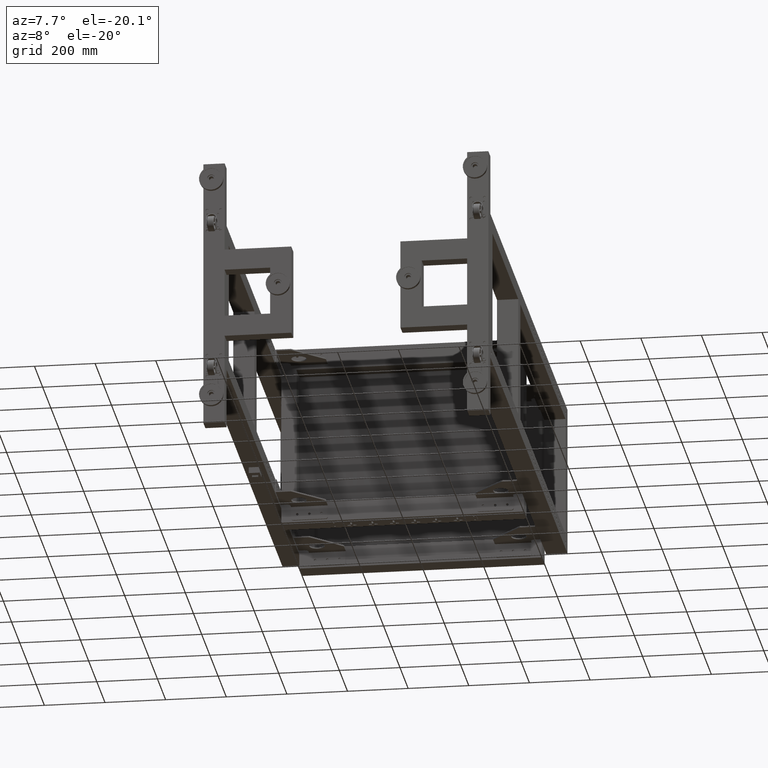
[diagram: clean part render]
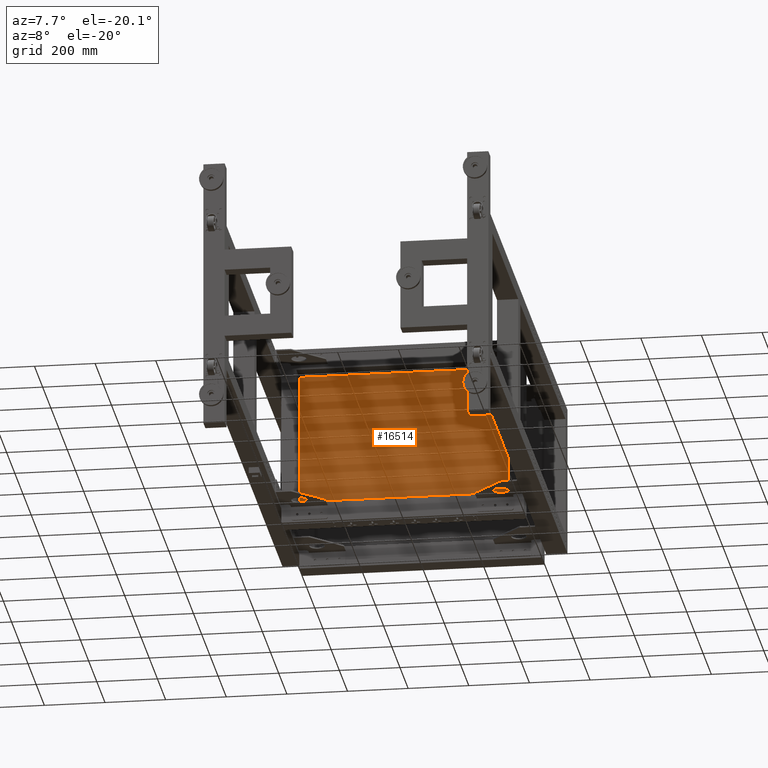
[diagram: same view with one face highlighted and labeled with its STEP entity id]
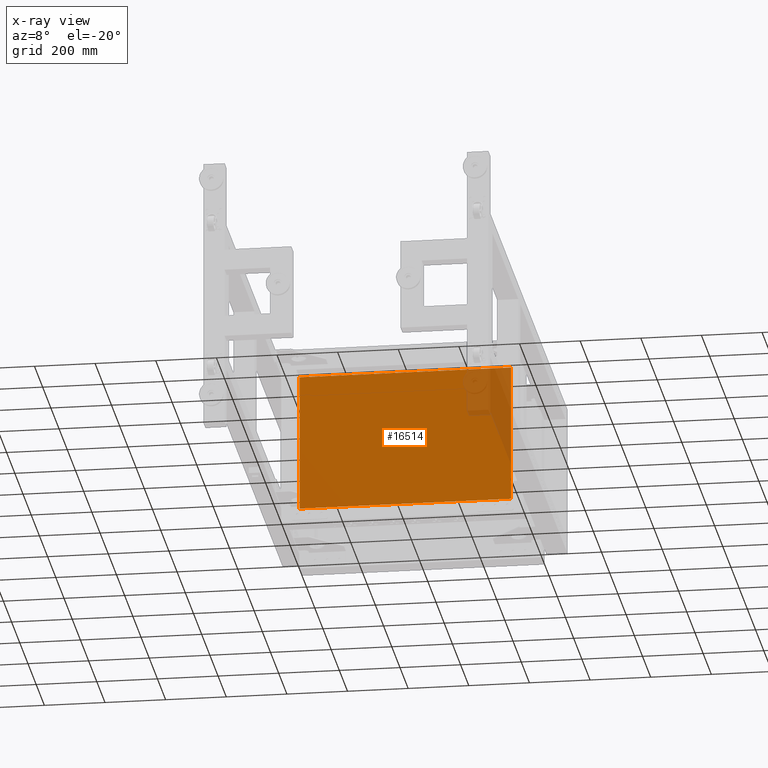
[diagram: x-ray of the same camera — body ghosted, the highlighted face saturated]
A machine part, auxiliary view. The second image highlights one B-rep face of the part: STEP entity #16514.
The next image is the same camera in x-ray: the body ghosted, the highlighted face saturated — about 9% of this face is hidden behind the body in this view.
In plain terms, the highlighted planar face has unit normal (0, 1, -0).
Its self-contained STEP definition (entity closure, byte-faithful):
#1303 = PLANE ( 'NONE',  #25478 ) ;
#3586 = VERTEX_POINT ( 'NONE', #49506 ) ;
#4503 = EDGE_CURVE ( 'NONE', #32127, #52454, #61348, .T. ) ;
#5447 = EDGE_CURVE ( 'NONE', #32127, #26121, #11003, .T. ) ;
#6482 = DIRECTION ( 'NONE',  ( 0.000000000000000000, 1.000000000000000000, -1.000000000000000472E-15 ) ) ;
#7873 = ORIENTED_EDGE ( 'NONE', *, *, #4503, .F. ) ;
#10954 = VECTOR ( 'NONE', #22774, 1000.000000000000000 ) ;
#11003 = LINE ( 'NONE', #26436, #21827 ) ;
#11778 = VECTOR ( 'NONE', #54025, 1000.000000000000000 ) ;
#11798 = VECTOR ( 'NONE', #33920, 1000.000000000000000 ) ;
#13017 = CARTESIAN_POINT ( 'NONE',  ( -219.6824874371860972, 555.4410804020124033, -228.4899999999998954 ) ) ;
#14144 = EDGE_CURVE ( 'NONE', #3586, #26121, #64648, .T. ) ;
#16514 = ADVANCED_FACE ( 'NONE', ( #37330 ), #1303, .F. ) ;
#21267 = CARTESIAN_POINT ( 'NONE',  ( -519.6824874371841361, 555.4410804020131991, 228.4900000000081093 ) ) ;
#21827 = VECTOR ( 'NONE', #52503, 1000.000000000000000 ) ;
#22094 = LINE ( 'NONE', #32387, #10954 ) ;
#22774 = DIRECTION ( 'NONE',  ( 0.000000000000000000, 1.000000000000000472E-15, 1.000000000000000000 ) ) ;
#23486 = CARTESIAN_POINT ( 'NONE',  ( -2616.662487437186428, 555.4410804020128580, 228.4900000000001228 ) ) ;
#25478 = AXIS2_PLACEMENT_3D ( 'NONE', #27395, #6482, #64760 ) ;
#26121 = VERTEX_POINT ( 'NONE', #21267 ) ;
#26436 = CARTESIAN_POINT ( 'NONE',  ( -519.6824874371841361, 555.4410804020127443, -228.4899999999998954 ) ) ;
#27395 = CARTESIAN_POINT ( 'NONE',  ( -1418.172487437186192, 555.4410804020126307, 1.110223024625156540E-13 ) ) ;
#29350 = ORIENTED_EDGE ( 'NONE', *, *, #14144, .F. ) ;
#32127 = VERTEX_POINT ( 'NONE', #45237 ) ;
#32387 = CARTESIAN_POINT ( 'NONE',  ( -1216.662487437185973, 555.4410804020124033, -228.4899999999998954 ) ) ;
#33920 = DIRECTION ( 'NONE',  ( -1.000000000000000000, 0.000000000000000000, 0.000000000000000000 ) ) ;
#37330 = FACE_OUTER_BOUND ( 'NONE', #56346, .T. ) ;
#39687 = CARTESIAN_POINT ( 'NONE',  ( -1216.662487437185973, 555.4410804020124033, -228.4899999999998954 ) ) ;
#40320 = ORIENTED_EDGE ( 'NONE', *, *, #55688, .F. ) ;
#45237 = CARTESIAN_POINT ( 'NONE',  ( -519.6824874371841361, 555.4410804020127443, -228.4899999999998954 ) ) ;
#49506 = CARTESIAN_POINT ( 'NONE',  ( -1216.662487437185973, 555.4410804020128580, 228.4900000000081093 ) ) ;
#52454 = VERTEX_POINT ( 'NONE', #39687 ) ;
#52503 = DIRECTION ( 'NONE',  ( -2.653611717788263701E-31, 1.000000000000000472E-15, 1.000000000000000000 ) ) ;
#54025 = DIRECTION ( 'NONE',  ( 1.000000000000000000, -0.000000000000000000, 0.000000000000000000 ) ) ;
#55688 = EDGE_CURVE ( 'NONE', #52454, #3586, #22094, .T. ) ;
#56346 = EDGE_LOOP ( 'NONE', ( #29350, #40320, #7873, #59408 ) ) ;
#59408 = ORIENTED_EDGE ( 'NONE', *, *, #5447, .T. ) ;
#61348 = LINE ( 'NONE', #13017, #11798 ) ;
#64648 = LINE ( 'NONE', #23486, #11778 ) ;
#64760 = DIRECTION ( 'NONE',  ( 0.000000000000000000, 1.000000000000000472E-15, 1.000000000000000000 ) ) ;